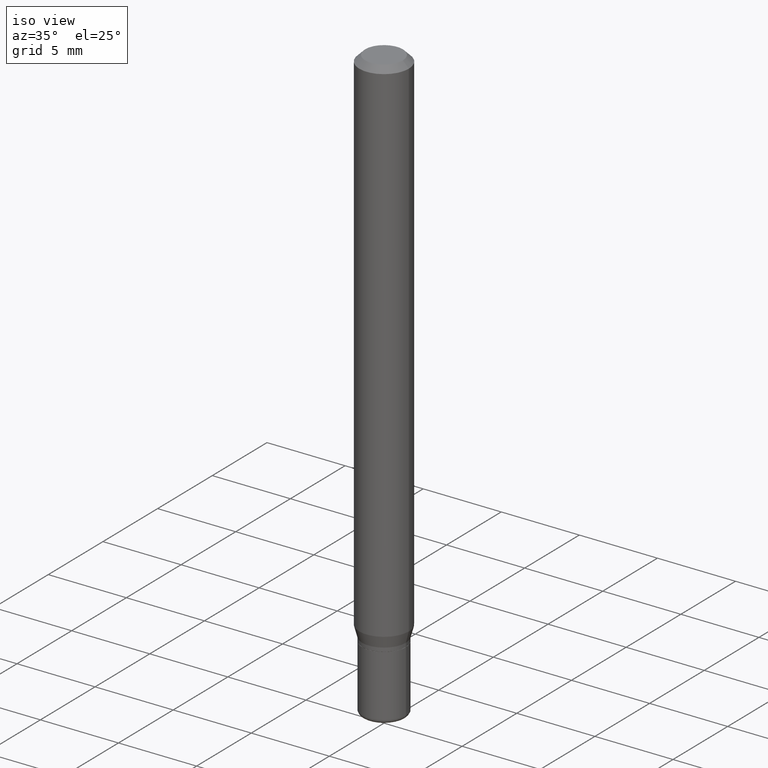
[diagram: clean part render]
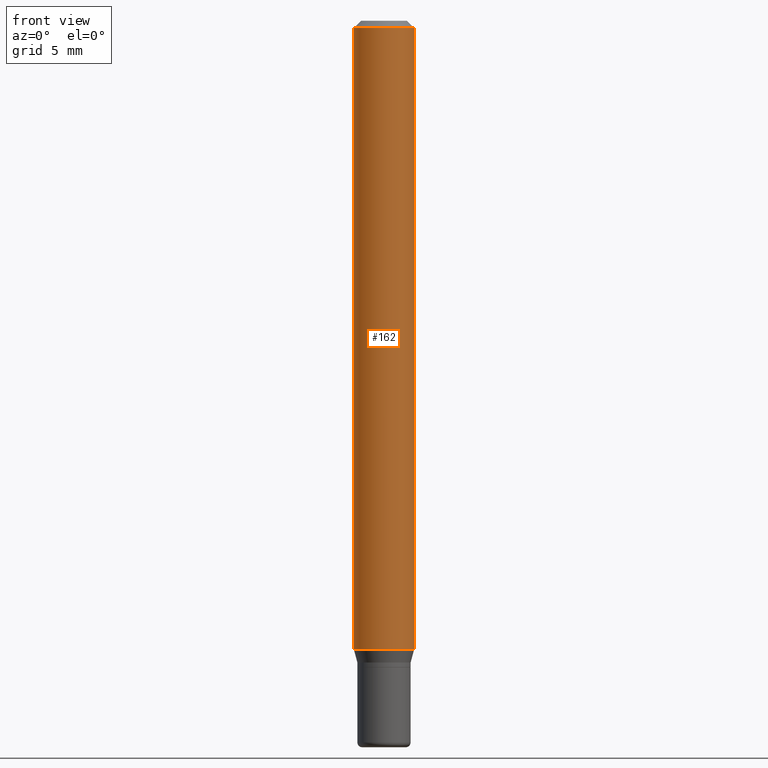
[diagram: tour spotlight — one face highlighted and labeled with its STEP entity id]
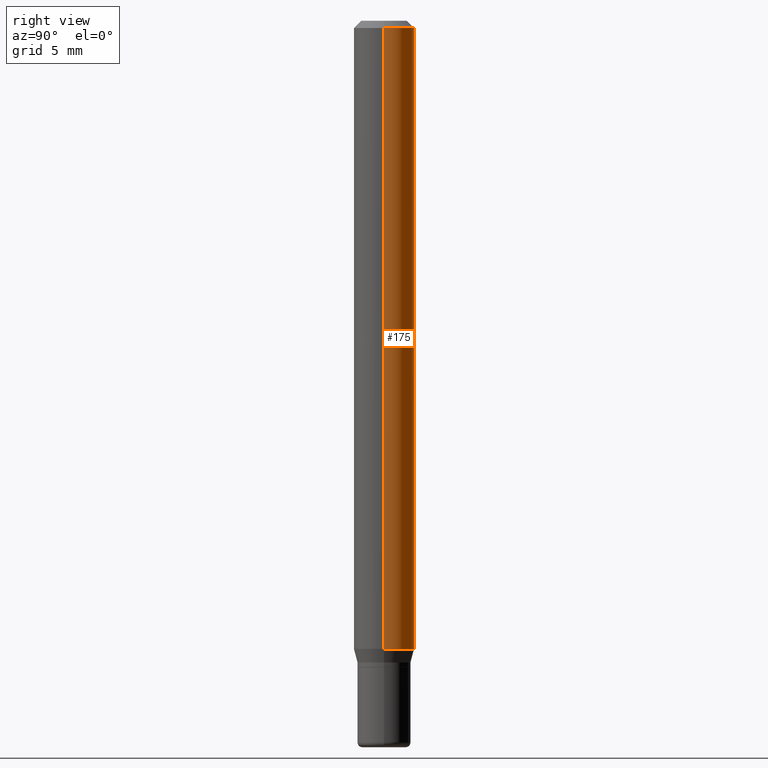
[diagram: tour spotlight — one face highlighted and labeled with its STEP entity id]
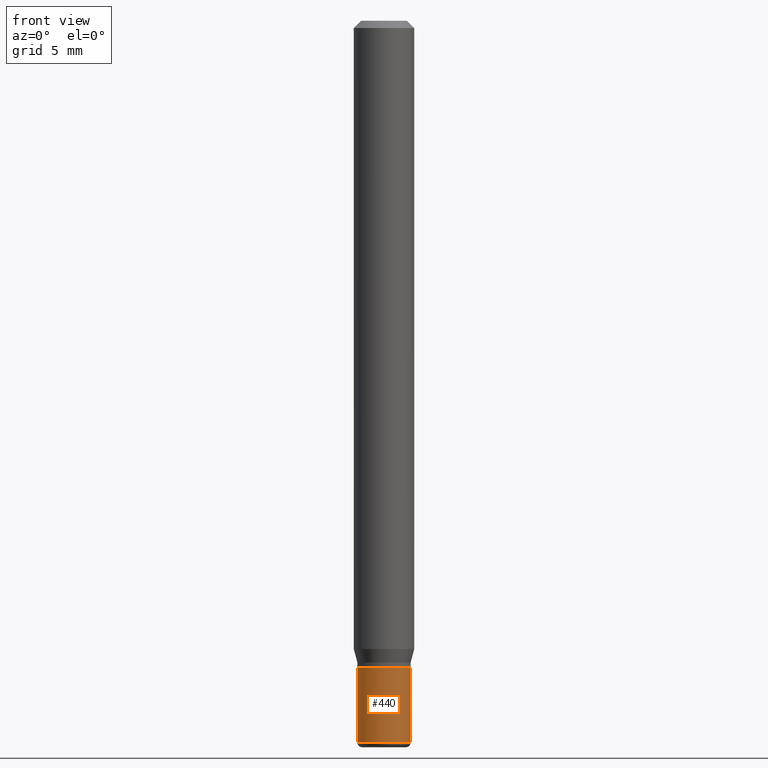
[diagram: tour spotlight — one face highlighted and labeled with its STEP entity id]
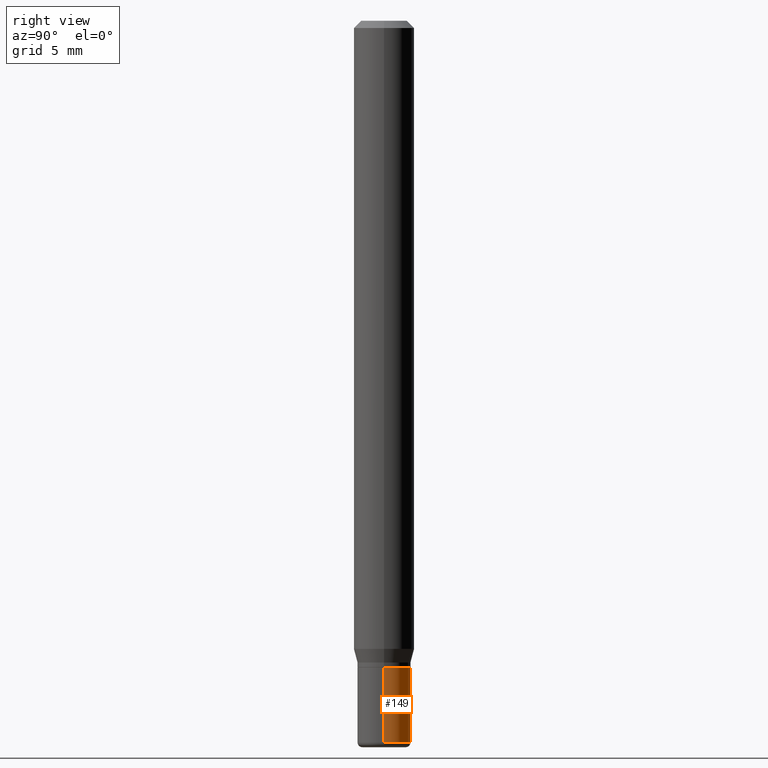
[diagram: tour spotlight — one face highlighted and labeled with its STEP entity id]
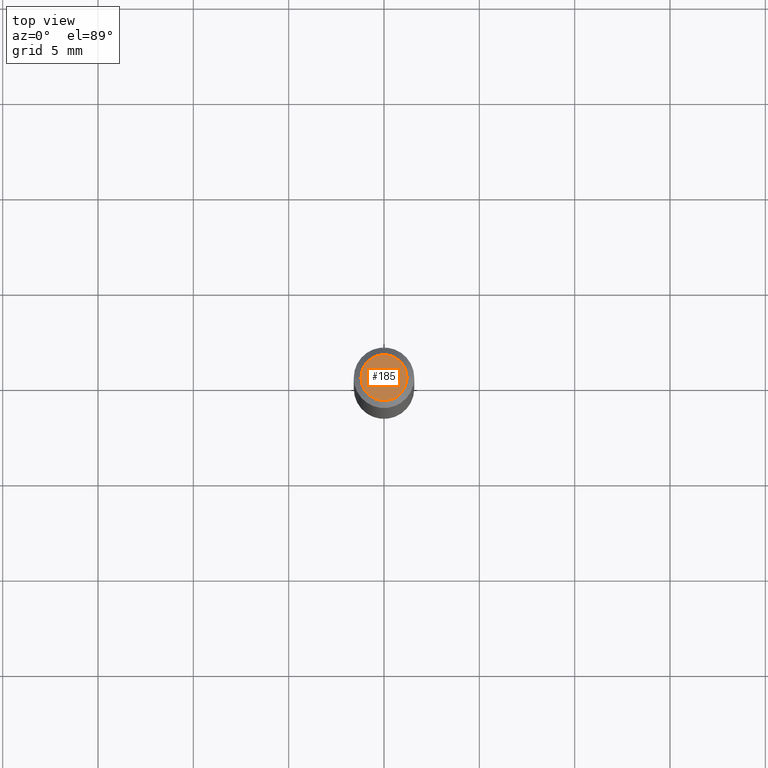
[diagram: tour spotlight — one face highlighted and labeled with its STEP entity id]
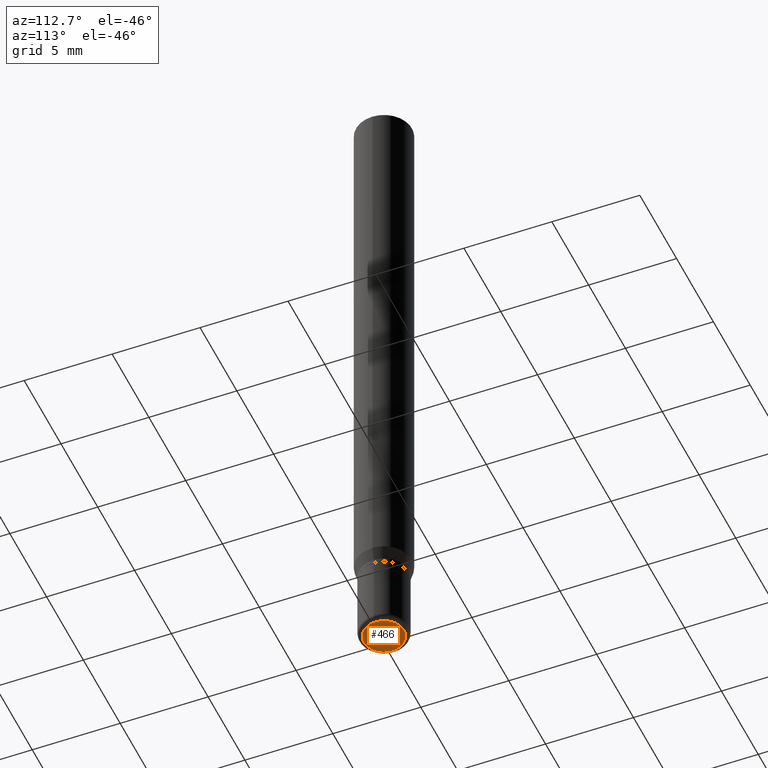
[diagram: tour spotlight — one face highlighted and labeled with its STEP entity id]
A machine part: a face-by-face anatomy tour. The part has 18 B-rep faces; the first image is the clean iso view, then the 6 largest visible faces are spotlighted one at a time (largest first), each with its STEP entity span.

Face 1 — front view, entity #162. In plain terms, the highlighted cylindrical surface (edge-blend (fillet) strip) has radius 1.5875 mm, axis along (-0, 0, 1).
Definition (entity closure, byte-faithful):
#15 = EDGE_CURVE ( 'NONE', #100, #138, #270, .T. ) ;
#17 = ORIENTED_EDGE ( 'NONE', *, *, #204, .T. ) ;
#51 = VERTEX_POINT ( 'NONE', #116 ) ;
#52 = AXIS2_PLACEMENT_3D ( 'NONE', #268, #347, #128 ) ;
#62 = ORIENTED_EDGE ( 'NONE', *, *, #446, .F. ) ;
#76 = DIRECTION ( 'NONE',  ( -2.445468806185136597E-29, 3.491481338843145583E-15, 1.000000000000000000 ) ) ;
#77 = DIRECTION ( 'NONE',  ( -2.445468806185136597E-29, 3.491481338843145583E-15, 1.000000000000000000 ) ) ;
#100 = VERTEX_POINT ( 'NONE', #291 ) ;
#108 = CARTESIAN_POINT ( 'NONE',  ( -0.06250000000000000000, 4.440892098500626162E-16, -3.074334431409316114E-30 ) ) ;
#116 = CARTESIAN_POINT ( 'NONE',  ( -0.06250000000000000000, -4.084395670990297185E-15, -1.297009618943233633 ) ) ;
#128 = DIRECTION ( 'NONE',  ( 1.000000000000000000, -6.982962677686262766E-15, 0.000000000000000000 ) ) ;
#133 = VERTEX_POINT ( 'NONE', #286 ) ;
#134 = AXIS2_PLACEMENT_3D ( 'NONE', #439, #76, #362 ) ;
#138 = VERTEX_POINT ( 'NONE', #479 ) ;
#139 = EDGE_LOOP ( 'NONE', ( #62, #17, #209, #165 ) ) ;
#162 = ADVANCED_FACE ( 'NONE', ( #246 ), #441, .T. ) ;
#165 = ORIENTED_EDGE ( 'NONE', *, *, #15, .F. ) ;
#204 = EDGE_CURVE ( 'NONE', #51, #133, #205, .T. ) ;
#205 = CIRCLE ( 'NONE', #52, 0.06250000000000000000 ) ;
#209 = ORIENTED_EDGE ( 'NONE', *, *, #334, .T. ) ;
#233 = DIRECTION ( 'NONE',  ( -2.445468806185136877E-29, 3.491481338843145188E-15, 1.000000000000000000 ) ) ;
#246 = FACE_OUTER_BOUND ( 'NONE', #139, .T. ) ;
#260 = DIRECTION ( 'NONE',  ( -2.445468806185136877E-29, 3.491481338843145188E-15, 1.000000000000000000 ) ) ;
#266 = LINE ( 'NONE', #328, #490 ) ;
#268 = CARTESIAN_POINT ( 'NONE',  ( 3.171796564447748341E-29, -4.528484880840359801E-15, -1.297009618943233633 ) ) ;
#270 = CIRCLE ( 'NONE', #134, 0.06250000000000000000 ) ;
#281 = LINE ( 'NONE', #108, #444 ) ;
#286 = CARTESIAN_POINT ( 'NONE',  ( 0.06250000000000000000, -4.964920048195750682E-15, -1.297009618943233633 ) ) ;
#291 = CARTESIAN_POINT ( 'NONE',  ( -0.06250000000000000000, -1.846339340611439838E-15, -0.01499999999999970281 ) ) ;
#296 = DIRECTION ( 'NONE',  ( 1.000000000000000000, -6.982962677686266711E-15, 4.876176775795935793E-29 ) ) ;
#328 = CARTESIAN_POINT ( 'NONE',  ( 0.06250000000000000000, -4.364351673553916694E-16, 3.047610484872459871E-30 ) ) ;
#334 = EDGE_CURVE ( 'NONE', #133, #138, #266, .T. ) ;
#347 = DIRECTION ( 'NONE',  ( -2.445468806185136597E-29, 3.491481338843145583E-15, 1.000000000000000000 ) ) ;
#362 = DIRECTION ( 'NONE',  ( 1.000000000000000000, -6.982962677686266711E-15, 0.000000000000000000 ) ) ;
#439 = CARTESIAN_POINT ( 'NONE',  ( 3.668203209277632395E-31, -5.237222008264614861E-17, -0.01499999999999970281 ) ) ;
#441 = CYLINDRICAL_SURFACE ( 'NONE', #509, 0.06250000000000000000 ) ;
#444 = VECTOR ( 'NONE', #233, 39.37007874015748143 ) ;
#446 = EDGE_CURVE ( 'NONE', #51, #100, #281, .T. ) ;
#479 = CARTESIAN_POINT ( 'NONE',  ( 0.06250000000000000000, -4.888073874380378612E-16, -0.01499999999999970281 ) ) ;
#490 = VECTOR ( 'NONE', #260, 39.37007874015748143 ) ;
#509 = AXIS2_PLACEMENT_3D ( 'NONE', #518, #77, #296 ) ;
#518 = CARTESIAN_POINT ( 'NONE',  ( 0.000000000000000000, 0.000000000000000000, 0.000000000000000000 ) ) ;

Face 2 — right view, entity #175. In plain terms, the highlighted cylindrical surface (edge-blend (fillet) strip) has radius 1.5875 mm, axis along (-0, 0, 1).
Definition (entity closure, byte-faithful):
#7 = FACE_OUTER_BOUND ( 'NONE', #235, .T. ) ;
#13 = ORIENTED_EDGE ( 'NONE', *, *, #193, .F. ) ;
#18 = CIRCLE ( 'NONE', #99, 0.06250000000000000000 ) ;
#48 = CYLINDRICAL_SURFACE ( 'NONE', #379, 0.06250000000000000000 ) ;
#51 = VERTEX_POINT ( 'NONE', #116 ) ;
#69 = CARTESIAN_POINT ( 'NONE',  ( 3.668203209277632395E-31, -5.237222008264614861E-17, -0.01499999999999970281 ) ) ;
#93 = DIRECTION ( 'NONE',  ( 1.000000000000000000, -6.982962677686266711E-15, 0.000000000000000000 ) ) ;
#99 = AXIS2_PLACEMENT_3D ( 'NONE', #69, #132, #93 ) ;
#100 = VERTEX_POINT ( 'NONE', #291 ) ;
#104 = EDGE_CURVE ( 'NONE', #133, #51, #197, .T. ) ;
#108 = CARTESIAN_POINT ( 'NONE',  ( -0.06250000000000000000, 4.440892098500626162E-16, -3.074334431409316114E-30 ) ) ;
#110 = DIRECTION ( 'NONE',  ( 1.000000000000000000, -6.982962677686262766E-15, 0.000000000000000000 ) ) ;
#116 = CARTESIAN_POINT ( 'NONE',  ( -0.06250000000000000000, -4.084395670990297185E-15, -1.297009618943233633 ) ) ;
#132 = DIRECTION ( 'NONE',  ( -2.445468806185136597E-29, 3.491481338843145583E-15, 1.000000000000000000 ) ) ;
#133 = VERTEX_POINT ( 'NONE', #286 ) ;
#138 = VERTEX_POINT ( 'NONE', #479 ) ;
#140 = DIRECTION ( 'NONE',  ( 1.000000000000000000, -6.982962677686266711E-15, 4.876176775795935793E-29 ) ) ;
#175 = ADVANCED_FACE ( 'NONE', ( #7 ), #48, .T. ) ;
#184 = DIRECTION ( 'NONE',  ( -2.445468806185136597E-29, 3.491481338843145583E-15, 1.000000000000000000 ) ) ;
#193 = EDGE_CURVE ( 'NONE', #138, #100, #18, .T. ) ;
#197 = CIRCLE ( 'NONE', #483, 0.06250000000000000000 ) ;
#219 = ORIENTED_EDGE ( 'NONE', *, *, #104, .T. ) ;
#233 = DIRECTION ( 'NONE',  ( -2.445468806185136877E-29, 3.491481338843145188E-15, 1.000000000000000000 ) ) ;
#235 = EDGE_LOOP ( 'NONE', ( #219, #274, #13, #295 ) ) ;
#255 = DIRECTION ( 'NONE',  ( -2.445468806185136597E-29, 3.491481338843145583E-15, 1.000000000000000000 ) ) ;
#260 = DIRECTION ( 'NONE',  ( -2.445468806185136877E-29, 3.491481338843145188E-15, 1.000000000000000000 ) ) ;
#266 = LINE ( 'NONE', #328, #490 ) ;
#274 = ORIENTED_EDGE ( 'NONE', *, *, #446, .T. ) ;
#281 = LINE ( 'NONE', #108, #444 ) ;
#286 = CARTESIAN_POINT ( 'NONE',  ( 0.06250000000000000000, -4.964920048195750682E-15, -1.297009618943233633 ) ) ;
#291 = CARTESIAN_POINT ( 'NONE',  ( -0.06250000000000000000, -1.846339340611439838E-15, -0.01499999999999970281 ) ) ;
#295 = ORIENTED_EDGE ( 'NONE', *, *, #334, .F. ) ;
#302 = CARTESIAN_POINT ( 'NONE',  ( 3.171796564447748341E-29, -4.528484880840359801E-15, -1.297009618943233633 ) ) ;
#328 = CARTESIAN_POINT ( 'NONE',  ( 0.06250000000000000000, -4.364351673553916694E-16, 3.047610484872459871E-30 ) ) ;
#334 = EDGE_CURVE ( 'NONE', #133, #138, #266, .T. ) ;
#379 = AXIS2_PLACEMENT_3D ( 'NONE', #426, #184, #140 ) ;
#426 = CARTESIAN_POINT ( 'NONE',  ( 0.000000000000000000, 0.000000000000000000, 0.000000000000000000 ) ) ;
#444 = VECTOR ( 'NONE', #233, 39.37007874015748143 ) ;
#446 = EDGE_CURVE ( 'NONE', #51, #100, #281, .T. ) ;
#479 = CARTESIAN_POINT ( 'NONE',  ( 0.06250000000000000000, -4.888073874380378612E-16, -0.01499999999999970281 ) ) ;
#483 = AXIS2_PLACEMENT_3D ( 'NONE', #302, #255, #110 ) ;
#490 = VECTOR ( 'NONE', #260, 39.37007874015748143 ) ;

Face 3 — front view, entity #440. In plain terms, the highlighted cylindrical surface (edge-blend (fillet) strip) has radius 1.397 mm, axis along (-0, 0, 1).
Definition (entity closure, byte-faithful):
#25 = FACE_OUTER_BOUND ( 'NONE', #499, .T. ) ;
#46 = AXIS2_PLACEMENT_3D ( 'NONE', #358, #315, #194 ) ;
#53 = EDGE_CURVE ( 'NONE', #425, #338, #146, .T. ) ;
#55 = LINE ( 'NONE', #456, #455 ) ;
#67 = CARTESIAN_POINT ( 'NONE',  ( -0.05500000000000000028, -4.540918886447888559E-15, -1.335000000000000187 ) ) ;
#74 = VERTEX_POINT ( 'NONE', #373 ) ;
#102 = ORIENTED_EDGE ( 'NONE', *, *, #297, .T. ) ;
#129 = DIRECTION ( 'NONE',  ( -2.445468806185136597E-29, 3.491481338843145583E-15, 1.000000000000000000 ) ) ;
#145 = CIRCLE ( 'NONE', #408, 0.05499999999999995171 ) ;
#146 = LINE ( 'NONE', #293, #306 ) ;
#174 = ORIENTED_EDGE ( 'NONE', *, *, #248, .F. ) ;
#178 = DIRECTION ( 'NONE',  ( -2.445468806185136877E-29, 3.491481338843145188E-15, 1.000000000000000000 ) ) ;
#194 = DIRECTION ( 'NONE',  ( 1.000000000000000000, -6.982962677686265922E-15, 4.876176775795935232E-29 ) ) ;
#198 = AXIS2_PLACEMENT_3D ( 'NONE', #308, #418, #480 ) ;
#230 = CARTESIAN_POINT ( 'NONE',  ( 0.05500000000000000028, -5.045190534628344107E-15, -1.335000000000000187 ) ) ;
#248 = EDGE_CURVE ( 'NONE', #74, #394, #55, .T. ) ;
#275 = CARTESIAN_POINT ( 'NONE',  ( 0.05499999999999995171, -5.586370142149032301E-15, -1.490000000000000213 ) ) ;
#293 = CARTESIAN_POINT ( 'NONE',  ( 0.05499999999999997946, -3.840629472727444916E-16, 2.681897226687763425E-30 ) ) ;
#297 = EDGE_CURVE ( 'NONE', #74, #425, #145, .T. ) ;
#306 = VECTOR ( 'NONE', #326, 39.37007874015748143 ) ;
#308 = CARTESIAN_POINT ( 'NONE',  ( 3.264700856257157760E-29, -4.661127587355599122E-15, -1.335000000000000187 ) ) ;
#315 = DIRECTION ( 'NONE',  ( -2.445468806185136597E-29, 3.491481338843145583E-15, 1.000000000000000000 ) ) ;
#326 = DIRECTION ( 'NONE',  ( -2.445468806185136877E-29, 3.491481338843145188E-15, 1.000000000000000000 ) ) ;
#338 = VERTEX_POINT ( 'NONE', #230 ) ;
#339 = CARTESIAN_POINT ( 'NONE',  ( 3.643748521215853910E-29, -5.202307194876288105E-15, -1.490000000000000213 ) ) ;
#358 = CARTESIAN_POINT ( 'NONE',  ( 0.000000000000000000, 0.000000000000000000, 0.000000000000000000 ) ) ;
#359 = ORIENTED_EDGE ( 'NONE', *, *, #53, .T. ) ;
#371 = ORIENTED_EDGE ( 'NONE', *, *, #482, .F. ) ;
#373 = CARTESIAN_POINT ( 'NONE',  ( -0.05499999999999995171, -4.540918886447888559E-15, -1.490000000000000213 ) ) ;
#380 = CIRCLE ( 'NONE', #198, 0.05500000000000000028 ) ;
#394 = VERTEX_POINT ( 'NONE', #67 ) ;
#398 = CYLINDRICAL_SURFACE ( 'NONE', #46, 0.05499999999999997946 ) ;
#408 = AXIS2_PLACEMENT_3D ( 'NONE', #339, #129, #505 ) ;
#418 = DIRECTION ( 'NONE',  ( -2.445468806185136597E-29, 3.491481338843145583E-15, 1.000000000000000000 ) ) ;
#425 = VERTEX_POINT ( 'NONE', #275 ) ;
#440 = ADVANCED_FACE ( 'NONE', ( #25 ), #398, .T. ) ;
#455 = VECTOR ( 'NONE', #178, 39.37007874015748143 ) ;
#456 = CARTESIAN_POINT ( 'NONE',  ( -0.05499999999999997946, 3.907985046680549563E-16, -2.705414299640196961E-30 ) ) ;
#480 = DIRECTION ( 'NONE',  ( 1.000000000000000000, -6.982962677686262766E-15, 0.000000000000000000 ) ) ;
#482 = EDGE_CURVE ( 'NONE', #394, #338, #380, .T. ) ;
#499 = EDGE_LOOP ( 'NONE', ( #174, #102, #359, #371 ) ) ;
#505 = DIRECTION ( 'NONE',  ( 1.000000000000000000, -6.982962677686269077E-15, 0.000000000000000000 ) ) ;

Face 4 — right view, entity #149. In plain terms, the highlighted cylindrical surface (edge-blend (fillet) strip) has radius 1.397 mm, axis along (-0, 0, 1).
Definition (entity closure, byte-faithful):
#28 = CIRCLE ( 'NONE', #502, 0.05500000000000000028 ) ;
#32 = EDGE_CURVE ( 'NONE', #425, #74, #158, .T. ) ;
#33 = FACE_OUTER_BOUND ( 'NONE', #59, .T. ) ;
#39 = DIRECTION ( 'NONE',  ( -2.445468806185136597E-29, 3.491481338843145583E-15, 1.000000000000000000 ) ) ;
#41 = CYLINDRICAL_SURFACE ( 'NONE', #63, 0.05499999999999997946 ) ;
#53 = EDGE_CURVE ( 'NONE', #425, #338, #146, .T. ) ;
#55 = LINE ( 'NONE', #456, #455 ) ;
#59 = EDGE_LOOP ( 'NONE', ( #463, #107, #341, #117 ) ) ;
#63 = AXIS2_PLACEMENT_3D ( 'NONE', #294, #167, #211 ) ;
#65 = EDGE_CURVE ( 'NONE', #338, #394, #28, .T. ) ;
#67 = CARTESIAN_POINT ( 'NONE',  ( -0.05500000000000000028, -4.540918886447888559E-15, -1.335000000000000187 ) ) ;
#72 = DIRECTION ( 'NONE',  ( 1.000000000000000000, -6.982962677686262766E-15, 0.000000000000000000 ) ) ;
#74 = VERTEX_POINT ( 'NONE', #373 ) ;
#107 = ORIENTED_EDGE ( 'NONE', *, *, #248, .T. ) ;
#115 = CARTESIAN_POINT ( 'NONE',  ( 3.264700856257157760E-29, -4.661127587355599122E-15, -1.335000000000000187 ) ) ;
#117 = ORIENTED_EDGE ( 'NONE', *, *, #53, .F. ) ;
#146 = LINE ( 'NONE', #293, #306 ) ;
#149 = ADVANCED_FACE ( 'NONE', ( #33 ), #41, .T. ) ;
#158 = CIRCLE ( 'NONE', #515, 0.05499999999999995171 ) ;
#167 = DIRECTION ( 'NONE',  ( -2.445468806185136597E-29, 3.491481338843145583E-15, 1.000000000000000000 ) ) ;
#178 = DIRECTION ( 'NONE',  ( -2.445468806185136877E-29, 3.491481338843145188E-15, 1.000000000000000000 ) ) ;
#211 = DIRECTION ( 'NONE',  ( 1.000000000000000000, -6.982962677686265922E-15, 4.876176775795935232E-29 ) ) ;
#230 = CARTESIAN_POINT ( 'NONE',  ( 0.05500000000000000028, -5.045190534628344107E-15, -1.335000000000000187 ) ) ;
#247 = DIRECTION ( 'NONE',  ( -2.445468806185136597E-29, 3.491481338843145583E-15, 1.000000000000000000 ) ) ;
#248 = EDGE_CURVE ( 'NONE', #74, #394, #55, .T. ) ;
#275 = CARTESIAN_POINT ( 'NONE',  ( 0.05499999999999995171, -5.586370142149032301E-15, -1.490000000000000213 ) ) ;
#288 = CARTESIAN_POINT ( 'NONE',  ( 3.643748521215853910E-29, -5.202307194876288105E-15, -1.490000000000000213 ) ) ;
#293 = CARTESIAN_POINT ( 'NONE',  ( 0.05499999999999997946, -3.840629472727444916E-16, 2.681897226687763425E-30 ) ) ;
#294 = CARTESIAN_POINT ( 'NONE',  ( 0.000000000000000000, 0.000000000000000000, 0.000000000000000000 ) ) ;
#304 = DIRECTION ( 'NONE',  ( 1.000000000000000000, -6.982962677686269077E-15, 0.000000000000000000 ) ) ;
#306 = VECTOR ( 'NONE', #326, 39.37007874015748143 ) ;
#326 = DIRECTION ( 'NONE',  ( -2.445468806185136877E-29, 3.491481338843145188E-15, 1.000000000000000000 ) ) ;
#338 = VERTEX_POINT ( 'NONE', #230 ) ;
#341 = ORIENTED_EDGE ( 'NONE', *, *, #65, .F. ) ;
#373 = CARTESIAN_POINT ( 'NONE',  ( -0.05499999999999995171, -4.540918886447888559E-15, -1.490000000000000213 ) ) ;
#394 = VERTEX_POINT ( 'NONE', #67 ) ;
#425 = VERTEX_POINT ( 'NONE', #275 ) ;
#455 = VECTOR ( 'NONE', #178, 39.37007874015748143 ) ;
#456 = CARTESIAN_POINT ( 'NONE',  ( -0.05499999999999997946, 3.907985046680549563E-16, -2.705414299640196961E-30 ) ) ;
#463 = ORIENTED_EDGE ( 'NONE', *, *, #32, .T. ) ;
#502 = AXIS2_PLACEMENT_3D ( 'NONE', #115, #39, #72 ) ;
#515 = AXIS2_PLACEMENT_3D ( 'NONE', #288, #247, #304 ) ;

Face 5 — top view, entity #185. In plain terms, the highlighted planar face has unit normal (0, -0, -1).
Definition (entity closure, byte-faithful):
#14 = VERTEX_POINT ( 'NONE', #190 ) ;
#31 = DIRECTION ( 'NONE',  ( 1.000000000000000000, -6.982962677686266711E-15, 4.852736867747365086E-29 ) ) ;
#61 = FACE_OUTER_BOUND ( 'NONE', #504, .T. ) ;
#81 = AXIS2_PLACEMENT_3D ( 'NONE', #443, #157, #31 ) ;
#114 = AXIS2_PLACEMENT_3D ( 'NONE', #150, #284, #462 ) ;
#126 = CIRCLE ( 'NONE', #81, 0.04750000000000000749 ) ;
#136 = AXIS2_PLACEMENT_3D ( 'NONE', #254, #434, #267 ) ;
#137 = ORIENTED_EDGE ( 'NONE', *, *, #507, .T. ) ;
#150 = CARTESIAN_POINT ( 'NONE',  ( 3.316907271900976589E-16, 0.04750000000000000749, -2.925296391183627249E-17 ) ) ;
#153 = EDGE_CURVE ( 'NONE', #14, #454, #126, .T. ) ;
#157 = DIRECTION ( 'NONE',  ( -2.445468806185136597E-29, 3.491481338843145583E-15, 1.000000000000000000 ) ) ;
#185 = ADVANCED_FACE ( 'NONE', ( #61 ), #196, .F. ) ;
#190 = CARTESIAN_POINT ( 'NONE',  ( 0.04750000000000000749, -4.035134999187568762E-16, 2.731847993664288856E-16 ) ) ;
#196 = PLANE ( 'NONE',  #114 ) ;
#207 = CIRCLE ( 'NONE', #136, 0.04750000000000000749 ) ;
#254 = CARTESIAN_POINT ( 'NONE',  ( -6.680649051745406845E-45, 9.538196290434862081E-31, 2.731847993664263218E-16 ) ) ;
#267 = DIRECTION ( 'NONE',  ( 1.000000000000000000, -6.982962677686266711E-15, 4.852736867747365086E-29 ) ) ;
#284 = DIRECTION ( 'NONE',  ( 2.438088387897960049E-29, -3.491481338843145188E-15, -1.000000000000000000 ) ) ;
#303 = CARTESIAN_POINT ( 'NONE',  ( -0.04750000000000000749, 3.578768372314221353E-16, 2.731847993664239060E-16 ) ) ;
#389 = ORIENTED_EDGE ( 'NONE', *, *, #153, .T. ) ;
#434 = DIRECTION ( 'NONE',  ( -2.445468806185136597E-29, 3.491481338843145583E-15, 1.000000000000000000 ) ) ;
#443 = CARTESIAN_POINT ( 'NONE',  ( -6.680649051745406845E-45, 9.538196290434862081E-31, 2.731847993664263218E-16 ) ) ;
#454 = VERTEX_POINT ( 'NONE', #303 ) ;
#462 = DIRECTION ( 'NONE',  ( -1.000000000000000000, 6.982962677686265922E-15, -4.876176775795935793E-29 ) ) ;
#504 = EDGE_LOOP ( 'NONE', ( #137, #389 ) ) ;
#507 = EDGE_CURVE ( 'NONE', #454, #14, #207, .T. ) ;

Face 6 — auxiliary view, entity #466. In plain terms, the highlighted planar face has unit normal (-0, 0, 1).
Definition (entity closure, byte-faithful):
#9 = DIRECTION ( 'NONE',  ( 1.000000000000000000, -6.982962677686269077E-15, 0.000000000000000000 ) ) ;
#12 = CARTESIAN_POINT ( 'NONE',  ( 0.04499999999999999833, -5.551455328760600652E-15, -1.500000000000000222 ) ) ;
#19 = AXIS2_PLACEMENT_3D ( 'NONE', #486, #42, #92 ) ;
#42 = DIRECTION ( 'NONE',  ( -2.445468806185136597E-29, 3.491481338843145583E-15, 1.000000000000000000 ) ) ;
#50 = CARTESIAN_POINT ( 'NONE',  ( 3.668203209277704895E-29, -5.237222008264718177E-15, -1.500000000000000222 ) ) ;
#71 = CIRCLE ( 'NONE', #19, 0.04499999999999999833 ) ;
#83 = CARTESIAN_POINT ( 'NONE',  ( -0.04499999999999999833, -4.864493233690452733E-15, -1.500000000000000222 ) ) ;
#92 = DIRECTION ( 'NONE',  ( 1.000000000000000000, -6.982962677686269077E-15, 0.000000000000000000 ) ) ;
#103 = VERTEX_POINT ( 'NONE', #83 ) ;
#168 = AXIS2_PLACEMENT_3D ( 'NONE', #50, #218, #9 ) ;
#176 = PLANE ( 'NONE',  #252 ) ;
#218 = DIRECTION ( 'NONE',  ( -2.445468806185136597E-29, 3.491481338843145583E-15, 1.000000000000000000 ) ) ;
#229 = VERTEX_POINT ( 'NONE', #12 ) ;
#237 = EDGE_CURVE ( 'NONE', #229, #103, #430, .T. ) ;
#252 = AXIS2_PLACEMENT_3D ( 'NONE', #494, #498, #352 ) ;
#261 = FACE_OUTER_BOUND ( 'NONE', #351, .T. ) ;
#319 = ORIENTED_EDGE ( 'NONE', *, *, #237, .F. ) ;
#351 = EDGE_LOOP ( 'NONE', ( #319, #353 ) ) ;
#352 = DIRECTION ( 'NONE',  ( 1.000000000000000000, -6.982962677686265922E-15, 4.876176775795935793E-29 ) ) ;
#353 = ORIENTED_EDGE ( 'NONE', *, *, #461, .F. ) ;
#430 = CIRCLE ( 'NONE', #168, 0.04499999999999999833 ) ;
#461 = EDGE_CURVE ( 'NONE', #103, #229, #71, .T. ) ;
#466 = ADVANCED_FACE ( 'NONE', ( #261 ), #176, .F. ) ;
#486 = CARTESIAN_POINT ( 'NONE',  ( 3.668203209277704895E-29, -5.237222008264718177E-15, -1.500000000000000222 ) ) ;
#494 = CARTESIAN_POINT ( 'NONE',  ( 3.582686580359766038E-29, -5.359686688179453325E-15, -1.500000000000000222 ) ) ;
#498 = DIRECTION ( 'NONE',  ( -2.438088387897960049E-29, 3.491481338843145188E-15, 1.000000000000000000 ) ) ;